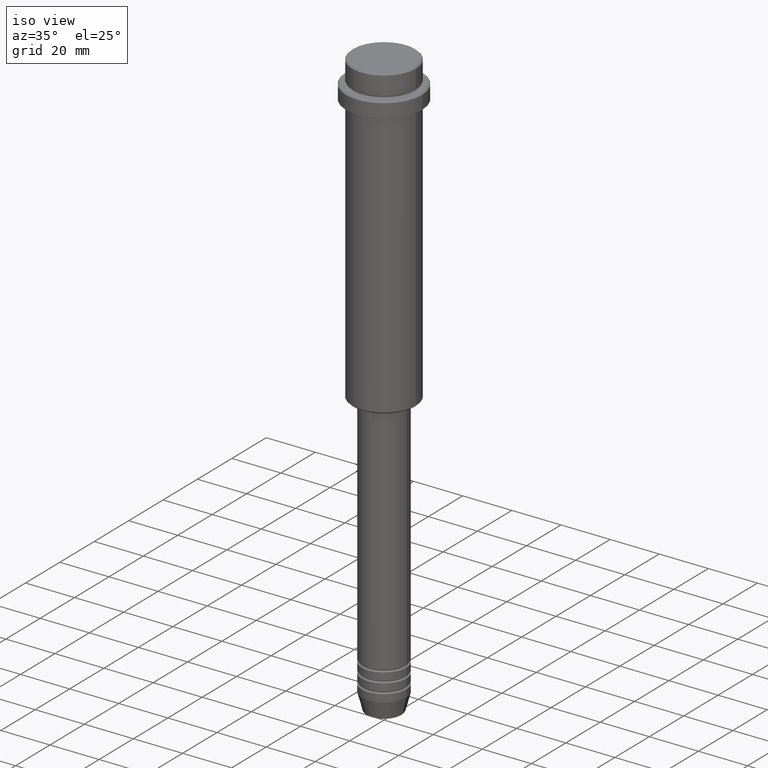
[diagram: clean part render]
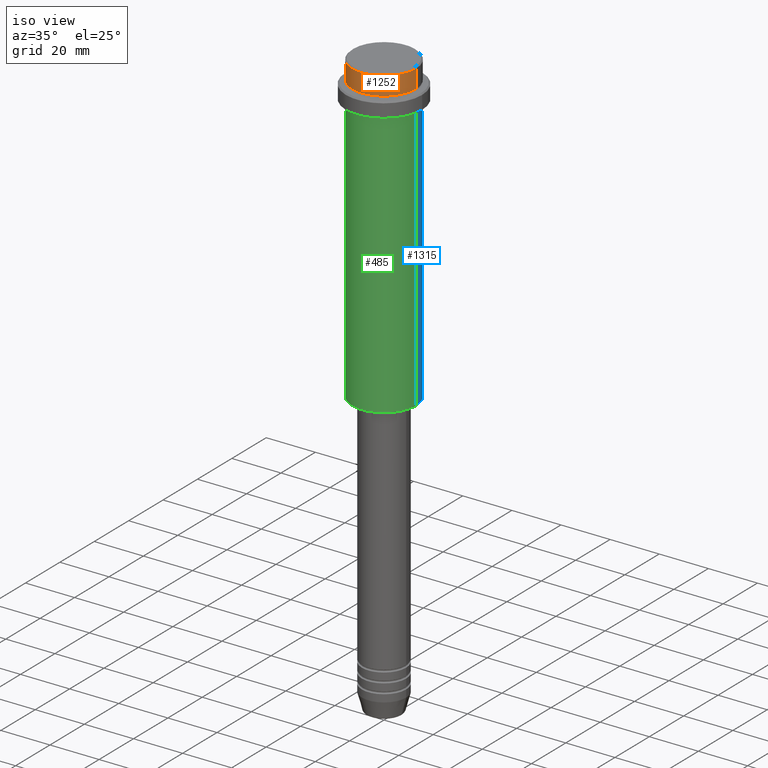
[diagram: same view with three faces highlighted in distinct colors, each labeled with its STEP entity id]
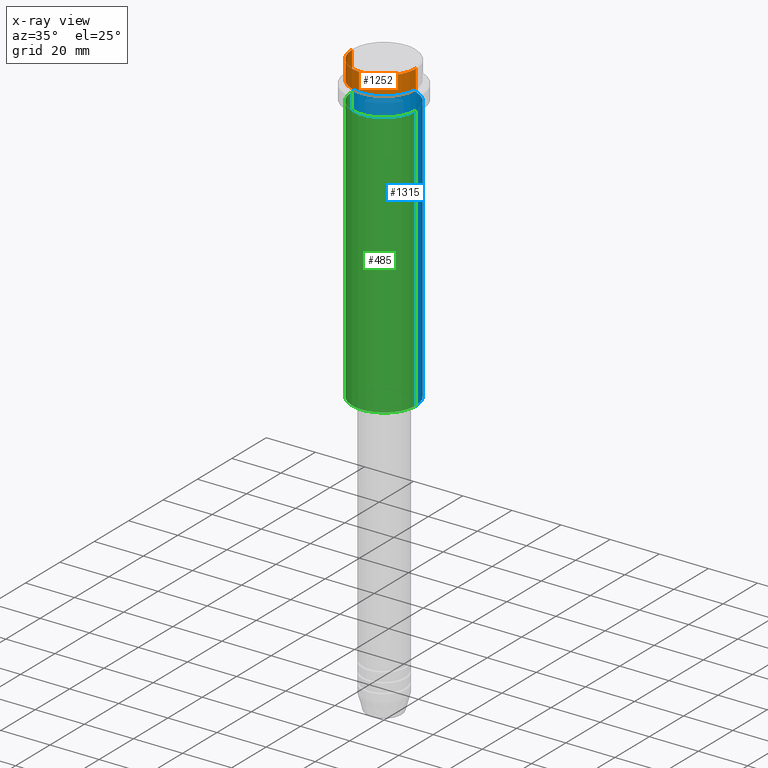
[diagram: x-ray of the same camera — body ghosted, the three highlighted faces saturated]
A machine part, iso view with three faces highlighted in distinct colors.
The next image is the same camera in x-ray (body ghosted, the three faces saturated) — at least one of them is partly hidden behind the body in this view.
Their STEP definitions:

[orange] entity #1252 — the highlighted cylindrical surface (partial cylindrical patch) has radius 13 mm, axis along (-0, -0, 1).
#3 = CARTESIAN_POINT ( 'NONE',  ( 12.99999999999999822, 0.000000000000000000, -0.5000000000000038858 ) ) ;
#4 = VERTEX_POINT ( 'NONE', #3 ) ;
#49 = CARTESIAN_POINT ( 'NONE',  ( 0.000000000000000000, 0.000000000000000000, -7.999999999999998224 ) ) ;
#98 = CIRCLE ( 'NONE', #895, 12.99999999999999822 ) ;
#141 = CARTESIAN_POINT ( 'NONE',  ( 0.000000000000000000, 0.000000000000000000, -0.5000000000000038858 ) ) ;
#148 = LINE ( 'NONE', #1268, #615 ) ;
#281 = CIRCLE ( 'NONE', #1325, 12.99999999999999822 ) ;
#298 = DIRECTION ( 'NONE',  ( -0.000000000000000000, -0.000000000000000000, 1.000000000000000000 ) ) ;
#321 = VERTEX_POINT ( 'NONE', #361 ) ;
#352 = EDGE_CURVE ( 'NONE', #321, #4, #496, .T. ) ;
#361 = CARTESIAN_POINT ( 'NONE',  ( 12.99999999999999822, 0.000000000000000000, -7.999999999999998224 ) ) ;
#379 = ORIENTED_EDGE ( 'NONE', *, *, #1067, .F. ) ;
#402 = ORIENTED_EDGE ( 'NONE', *, *, #352, .T. ) ;
#496 = LINE ( 'NONE', #815, #737 ) ;
#501 = DIRECTION ( 'NONE',  ( -0.000000000000000000, -0.000000000000000000, 1.000000000000000000 ) ) ;
#598 = DIRECTION ( 'NONE',  ( 1.000000000000000000, 0.000000000000000000, 0.000000000000000000 ) ) ;
#613 = VERTEX_POINT ( 'NONE', #652 ) ;
#615 = VECTOR ( 'NONE', #1346, 1000.000000000000000 ) ;
#652 = CARTESIAN_POINT ( 'NONE',  ( -12.99999999999999822, 1.592040838891558898E-15, -0.5000000000000038858 ) ) ;
#655 = CYLINDRICAL_SURFACE ( 'NONE', #1200, 12.99999999999999822 ) ;
#737 = VECTOR ( 'NONE', #1127, 1000.000000000000000 ) ;
#815 = CARTESIAN_POINT ( 'NONE',  ( 12.99999999999999822, 0.000000000000000000, 0.000000000000000000 ) ) ;
#895 = AXIS2_PLACEMENT_3D ( 'NONE', #49, #501, #1362 ) ;
#905 = EDGE_CURVE ( 'NONE', #4, #613, #281, .T. ) ;
#933 = DIRECTION ( 'NONE',  ( 0.000000000000000000, 0.000000000000000000, -1.000000000000000000 ) ) ;
#981 = CARTESIAN_POINT ( 'NONE',  ( 0.000000000000000000, 0.000000000000000000, 0.000000000000000000 ) ) ;
#1067 = EDGE_CURVE ( 'NONE', #1126, #613, #148, .T. ) ;
#1076 = FACE_OUTER_BOUND ( 'NONE', #1364, .T. ) ;
#1091 = DIRECTION ( 'NONE',  ( 1.000000000000000000, 0.000000000000000000, 0.000000000000000000 ) ) ;
#1126 = VERTEX_POINT ( 'NONE', #1242 ) ;
#1127 = DIRECTION ( 'NONE',  ( -0.000000000000000000, -0.000000000000000000, 1.000000000000000000 ) ) ;
#1167 = EDGE_CURVE ( 'NONE', #1126, #321, #98, .T. ) ;
#1200 = AXIS2_PLACEMENT_3D ( 'NONE', #981, #298, #1091 ) ;
#1242 = CARTESIAN_POINT ( 'NONE',  ( -12.99999999999999822, 1.592040838891558898E-15, -7.999999999999998224 ) ) ;
#1252 = ADVANCED_FACE ( 'NONE', ( #1076 ), #655, .T. ) ;
#1261 = ORIENTED_EDGE ( 'NONE', *, *, #905, .T. ) ;
#1268 = CARTESIAN_POINT ( 'NONE',  ( -12.99999999999999822, 1.592040838891558898E-15, 0.000000000000000000 ) ) ;
#1325 = AXIS2_PLACEMENT_3D ( 'NONE', #141, #933, #598 ) ;
#1346 = DIRECTION ( 'NONE',  ( -0.000000000000000000, -0.000000000000000000, 1.000000000000000000 ) ) ;
#1362 = DIRECTION ( 'NONE',  ( 1.000000000000000000, 0.000000000000000000, 0.000000000000000000 ) ) ;
#1364 = EDGE_LOOP ( 'NONE', ( #379, #1371, #402, #1261 ) ) ;
#1371 = ORIENTED_EDGE ( 'NONE', *, *, #1167, .T. ) ;

[blue] entity #1315 — the highlighted cylindrical surface (partial cylindrical patch) has radius 13 mm, axis along (-0, -0, 1).
#43 = CARTESIAN_POINT ( 'NONE',  ( 0.000000000000000000, 0.000000000000000000, -16.00000000000000000 ) ) ;
#59 = VERTEX_POINT ( 'NONE', #1344 ) ;
#145 = DIRECTION ( 'NONE',  ( -1.000000000000000000, 0.000000000000000000, 0.000000000000000000 ) ) ;
#314 = VERTEX_POINT ( 'NONE', #672 ) ;
#345 = DIRECTION ( 'NONE',  ( -0.000000000000000000, -0.000000000000000000, 1.000000000000000000 ) ) ;
#360 = AXIS2_PLACEMENT_3D ( 'NONE', #43, #1358, #362 ) ;
#362 = DIRECTION ( 'NONE',  ( 1.000000000000000000, 0.000000000000000000, 0.000000000000000000 ) ) ;
#366 = VERTEX_POINT ( 'NONE', #582 ) ;
#427 = CARTESIAN_POINT ( 'NONE',  ( -13.00000000000000000, 1.592040838891559095E-15, 0.000000000000000000 ) ) ;
#437 = CIRCLE ( 'NONE', #360, 13.00000000000000000 ) ;
#444 = VERTEX_POINT ( 'NONE', #978 ) ;
#447 = EDGE_CURVE ( 'NONE', #366, #59, #866, .T. ) ;
#489 = VECTOR ( 'NONE', #565, 1000.000000000000000 ) ;
#565 = DIRECTION ( 'NONE',  ( -0.000000000000000000, -0.000000000000000000, 1.000000000000000000 ) ) ;
#580 = DIRECTION ( 'NONE',  ( -0.000000000000000000, -0.000000000000000000, 1.000000000000000000 ) ) ;
#581 = EDGE_LOOP ( 'NONE', ( #1277, #1313, #1075, #1059 ) ) ;
#582 = CARTESIAN_POINT ( 'NONE',  ( 13.00000000000000000, 0.000000000000000000, -124.4999999999999716 ) ) ;
#672 = CARTESIAN_POINT ( 'NONE',  ( -13.00000000000000000, 1.592040838891559095E-15, -16.00000000000000000 ) ) ;
#686 = CARTESIAN_POINT ( 'NONE',  ( 0.000000000000000000, 0.000000000000000000, -124.4999999999999716 ) ) ;
#716 = AXIS2_PLACEMENT_3D ( 'NONE', #686, #580, #145 ) ;
#749 = LINE ( 'NONE', #427, #489 ) ;
#802 = CYLINDRICAL_SURFACE ( 'NONE', #839, 13.00000000000000000 ) ;
#839 = AXIS2_PLACEMENT_3D ( 'NONE', #1203, #345, #1212 ) ;
#866 = LINE ( 'NONE', #1077, #1062 ) ;
#910 = FACE_OUTER_BOUND ( 'NONE', #581, .T. ) ;
#931 = EDGE_CURVE ( 'NONE', #59, #314, #437, .T. ) ;
#951 = EDGE_CURVE ( 'NONE', #444, #314, #749, .T. ) ;
#974 = EDGE_CURVE ( 'NONE', #366, #444, #975, .T. ) ;
#975 = CIRCLE ( 'NONE', #716, 13.00000000000000000 ) ;
#978 = CARTESIAN_POINT ( 'NONE',  ( -13.00000000000000000, 1.592040838891559095E-15, -124.4999999999999716 ) ) ;
#1059 = ORIENTED_EDGE ( 'NONE', *, *, #447, .F. ) ;
#1062 = VECTOR ( 'NONE', #1072, 1000.000000000000000 ) ;
#1072 = DIRECTION ( 'NONE',  ( -0.000000000000000000, -0.000000000000000000, 1.000000000000000000 ) ) ;
#1075 = ORIENTED_EDGE ( 'NONE', *, *, #931, .F. ) ;
#1077 = CARTESIAN_POINT ( 'NONE',  ( 13.00000000000000000, 0.000000000000000000, 0.000000000000000000 ) ) ;
#1203 = CARTESIAN_POINT ( 'NONE',  ( 0.000000000000000000, 0.000000000000000000, 0.000000000000000000 ) ) ;
#1212 = DIRECTION ( 'NONE',  ( 1.000000000000000000, 0.000000000000000000, 0.000000000000000000 ) ) ;
#1277 = ORIENTED_EDGE ( 'NONE', *, *, #974, .T. ) ;
#1313 = ORIENTED_EDGE ( 'NONE', *, *, #951, .T. ) ;
#1315 = ADVANCED_FACE ( 'NONE', ( #910 ), #802, .T. ) ;
#1344 = CARTESIAN_POINT ( 'NONE',  ( 13.00000000000000000, 0.000000000000000000, -16.00000000000000000 ) ) ;
#1358 = DIRECTION ( 'NONE',  ( -0.000000000000000000, -0.000000000000000000, 1.000000000000000000 ) ) ;

[green] entity #485 — the highlighted cylindrical surface (partial cylindrical patch) has radius 13 mm, axis along (-0, -0, 1).
#45 = DIRECTION ( 'NONE',  ( -0.000000000000000000, -0.000000000000000000, 1.000000000000000000 ) ) ;
#59 = VERTEX_POINT ( 'NONE', #1344 ) ;
#214 = DIRECTION ( 'NONE',  ( -0.000000000000000000, -0.000000000000000000, 1.000000000000000000 ) ) ;
#224 = ORIENTED_EDGE ( 'NONE', *, *, #875, .F. ) ;
#247 = ORIENTED_EDGE ( 'NONE', *, *, #447, .T. ) ;
#253 = AXIS2_PLACEMENT_3D ( 'NONE', #708, #45, #376 ) ;
#314 = VERTEX_POINT ( 'NONE', #672 ) ;
#366 = VERTEX_POINT ( 'NONE', #582 ) ;
#376 = DIRECTION ( 'NONE',  ( -1.000000000000000000, 0.000000000000000000, 0.000000000000000000 ) ) ;
#420 = EDGE_CURVE ( 'NONE', #444, #366, #509, .T. ) ;
#427 = CARTESIAN_POINT ( 'NONE',  ( -13.00000000000000000, 1.592040838891559095E-15, 0.000000000000000000 ) ) ;
#442 = CARTESIAN_POINT ( 'NONE',  ( 0.000000000000000000, 0.000000000000000000, -16.00000000000000000 ) ) ;
#444 = VERTEX_POINT ( 'NONE', #978 ) ;
#447 = EDGE_CURVE ( 'NONE', #366, #59, #866, .T. ) ;
#462 = AXIS2_PLACEMENT_3D ( 'NONE', #442, #916, #1335 ) ;
#465 = DIRECTION ( 'NONE',  ( 1.000000000000000000, 0.000000000000000000, 0.000000000000000000 ) ) ;
#485 = ADVANCED_FACE ( 'NONE', ( #1305 ), #1204, .T. ) ;
#489 = VECTOR ( 'NONE', #565, 1000.000000000000000 ) ;
#509 = CIRCLE ( 'NONE', #253, 13.00000000000000000 ) ;
#565 = DIRECTION ( 'NONE',  ( -0.000000000000000000, -0.000000000000000000, 1.000000000000000000 ) ) ;
#582 = CARTESIAN_POINT ( 'NONE',  ( 13.00000000000000000, 0.000000000000000000, -124.4999999999999716 ) ) ;
#672 = CARTESIAN_POINT ( 'NONE',  ( -13.00000000000000000, 1.592040838891559095E-15, -16.00000000000000000 ) ) ;
#708 = CARTESIAN_POINT ( 'NONE',  ( 0.000000000000000000, 0.000000000000000000, -124.4999999999999716 ) ) ;
#725 = ORIENTED_EDGE ( 'NONE', *, *, #420, .T. ) ;
#735 = EDGE_LOOP ( 'NONE', ( #968, #725, #247, #224 ) ) ;
#738 = AXIS2_PLACEMENT_3D ( 'NONE', #1199, #214, #465 ) ;
#749 = LINE ( 'NONE', #427, #489 ) ;
#866 = LINE ( 'NONE', #1077, #1062 ) ;
#875 = EDGE_CURVE ( 'NONE', #314, #59, #1152, .T. ) ;
#916 = DIRECTION ( 'NONE',  ( -0.000000000000000000, -0.000000000000000000, 1.000000000000000000 ) ) ;
#951 = EDGE_CURVE ( 'NONE', #444, #314, #749, .T. ) ;
#968 = ORIENTED_EDGE ( 'NONE', *, *, #951, .F. ) ;
#978 = CARTESIAN_POINT ( 'NONE',  ( -13.00000000000000000, 1.592040838891559095E-15, -124.4999999999999716 ) ) ;
#1062 = VECTOR ( 'NONE', #1072, 1000.000000000000000 ) ;
#1072 = DIRECTION ( 'NONE',  ( -0.000000000000000000, -0.000000000000000000, 1.000000000000000000 ) ) ;
#1077 = CARTESIAN_POINT ( 'NONE',  ( 13.00000000000000000, 0.000000000000000000, 0.000000000000000000 ) ) ;
#1152 = CIRCLE ( 'NONE', #462, 13.00000000000000000 ) ;
#1199 = CARTESIAN_POINT ( 'NONE',  ( 0.000000000000000000, 0.000000000000000000, 0.000000000000000000 ) ) ;
#1204 = CYLINDRICAL_SURFACE ( 'NONE', #738, 13.00000000000000000 ) ;
#1305 = FACE_OUTER_BOUND ( 'NONE', #735, .T. ) ;
#1335 = DIRECTION ( 'NONE',  ( 1.000000000000000000, 0.000000000000000000, 0.000000000000000000 ) ) ;
#1344 = CARTESIAN_POINT ( 'NONE',  ( 13.00000000000000000, 0.000000000000000000, -16.00000000000000000 ) ) ;